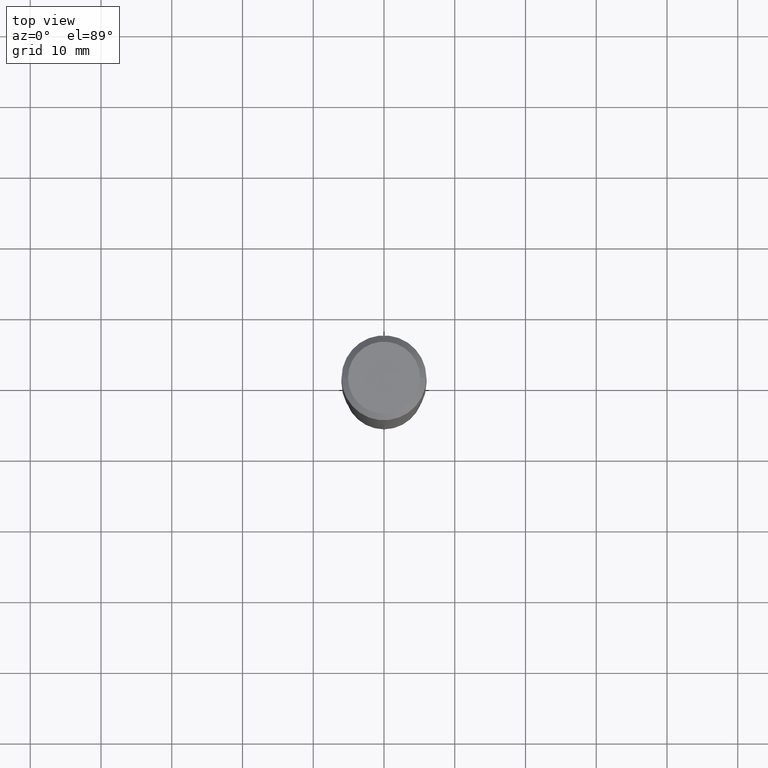
[diagram: clean part render]
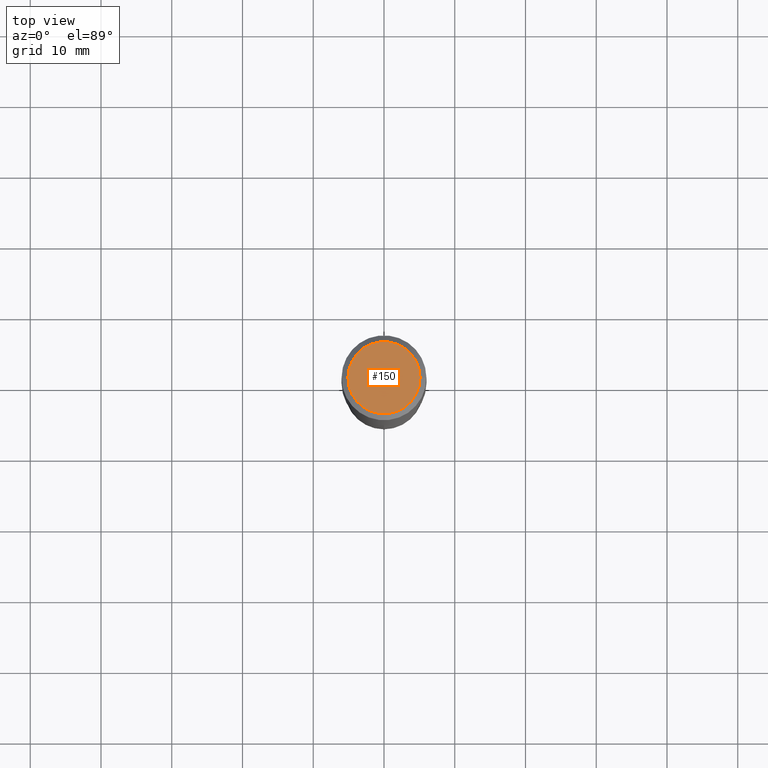
[diagram: same view with one face highlighted and labeled with its STEP entity id]
A machine part, top view. The second image highlights one B-rep face of the part: STEP entity #150.
In plain terms, the highlighted planar face has unit normal (0, -0, -1).
Its self-contained STEP definition (entity closure, byte-faithful):
#11 = PLANE ( 'NONE',  #88 ) ;
#37 = CIRCLE ( 'NONE', #94, 0.2007700000000000040 ) ;
#48 = DIRECTION ( 'NONE',  ( 1.000000000000000000, -6.982962677686266711E-15, 4.876140833081945105E-29 ) ) ;
#65 = DIRECTION ( 'NONE',  ( -2.445468806185136597E-29, 3.491481338843145583E-15, 1.000000000000000000 ) ) ;
#88 = AXIS2_PLACEMENT_3D ( 'NONE', #384, #426, #473 ) ;
#94 = AXIS2_PLACEMENT_3D ( 'NONE', #436, #65, #400 ) ;
#102 = VERTEX_POINT ( 'NONE', #310 ) ;
#104 = CARTESIAN_POINT ( 'NONE',  ( -1.001697619218023151E-46, 1.430158722866391908E-32, 4.096137381448114529E-18 ) ) ;
#112 = CIRCLE ( 'NONE', #156, 0.2007700000000000040 ) ;
#124 = EDGE_CURVE ( 'NONE', #102, #178, #37, .T. ) ;
#150 = ADVANCED_FACE ( 'NONE', ( #196 ), #11, .F. ) ;
#156 = AXIS2_PLACEMENT_3D ( 'NONE', #104, #166, #48 ) ;
#166 = DIRECTION ( 'NONE',  ( -2.445468806185136597E-29, 3.491481338843145583E-15, 1.000000000000000000 ) ) ;
#178 = VERTEX_POINT ( 'NONE', #423 ) ;
#190 = ORIENTED_EDGE ( 'NONE', *, *, #124, .T. ) ;
#196 = FACE_OUTER_BOUND ( 'NONE', #376, .T. ) ;
#209 = EDGE_CURVE ( 'NONE', #178, #102, #112, .T. ) ;
#216 = ORIENTED_EDGE ( 'NONE', *, *, #209, .T. ) ;
#310 = CARTESIAN_POINT ( 'NONE',  ( -0.2007700000000000040, 1.463821008716677338E-15, 4.096137381438094301E-18 ) ) ;
#376 = EDGE_LOOP ( 'NONE', ( #190, #216 ) ) ;
#384 = CARTESIAN_POINT ( 'NONE',  ( -5.008488096090115757E-47, 7.150793614331959538E-33, 2.048068690724057264E-18 ) ) ;
#400 = DIRECTION ( 'NONE',  ( 1.000000000000000000, -6.982962677686266711E-15, 4.876140833081945105E-29 ) ) ;
#423 = CARTESIAN_POINT ( 'NONE',  ( 0.2007700000000000040, -1.560767496960719672E-15, 4.096137381458473721E-18 ) ) ;
#426 = DIRECTION ( 'NONE',  ( 2.438088387897960049E-29, -3.491481338843145188E-15, -1.000000000000000000 ) ) ;
#436 = CARTESIAN_POINT ( 'NONE',  ( -1.001697619218023151E-46, 1.430158722866391908E-32, 4.096137381448114529E-18 ) ) ;
#473 = DIRECTION ( 'NONE',  ( -1.000000000000000000, 6.982962677686265922E-15, -4.876176775795935793E-29 ) ) ;